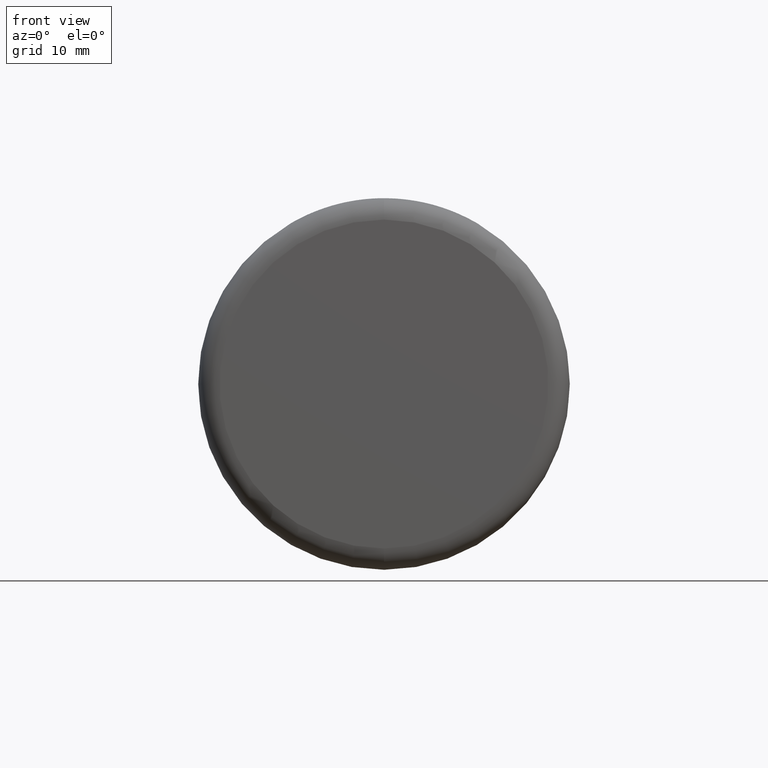
[diagram: clean part render]
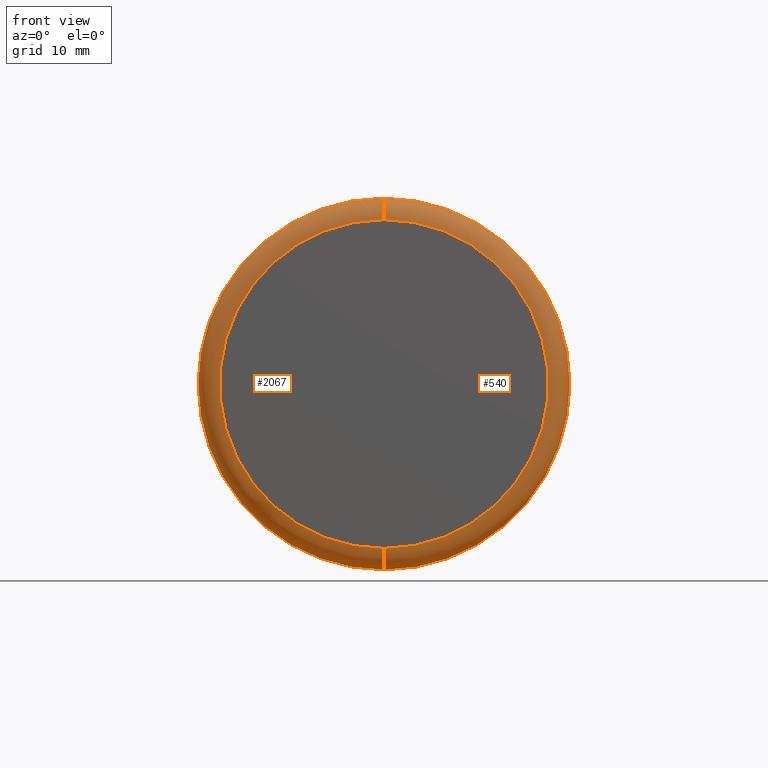
[diagram: same view with one multi-face feature highlighted, each face labeled with its STEP entity id]
A machine part, front view. The highlighted faces form ONE feature: a constant-radius fillet chain: 2 tangent blend faces with common blend radius 2.0736 mm. The faces share edges in the B-rep.
Their STEP definitions:
[1] entity #2067 (Torus):
#288 = CIRCLE ( 'NONE', #893, 15.92640000000000100 ) ;
#315 = VERTEX_POINT ( 'NONE', #457 ) ;
#363 = EDGE_CURVE ( 'NONE', #894, #3220, #3546, .T. ) ;
#457 = CARTESIAN_POINT ( 'NONE',  ( 0.0000000000000000000, 0.0000000000000000000, 15.92640000000000100 ) ) ;
#488 = CARTESIAN_POINT ( 'NONE',  ( 0.0000000000000000000, 2.073600000000001700, 0.0000000000000000000 ) ) ;
#527 = CIRCLE ( 'NONE', #2802, 18.00000000000000000 ) ;
#735 = CARTESIAN_POINT ( 'NONE',  ( 2.204364238465235400E-015, 2.073600000000001700, -18.00000000000000400 ) ) ;
#840 = ORIENTED_EDGE ( 'NONE', *, *, #3097, .T. ) ;
#893 = AXIS2_PLACEMENT_3D ( 'NONE', #4052, #1932, #3820 ) ;
#894 = VERTEX_POINT ( 'NONE', #897 ) ;
#897 = CARTESIAN_POINT ( 'NONE',  ( 2.077392858329638600E-015, 0.0000000000000000000, -15.92640000000000100 ) ) ;
#1544 = EDGE_CURVE ( 'NONE', #3220, #3663, #527, .T. ) ;
#1573 = DIRECTION ( 'NONE',  ( 0.0000000000000000000, 1.000000000000000000, 0.0000000000000000000 ) ) ;
#1694 = FACE_OUTER_BOUND ( 'NONE', #2175, .T. ) ;
#1932 = DIRECTION ( 'NONE',  ( -0.0000000000000000000, -1.000000000000000000, -0.0000000000000000000 ) ) ;
#1950 = DIRECTION ( 'NONE',  ( 0.0000000000000000000, 0.0000000000000000000, 1.000000000000000000 ) ) ;
#2010 = ORIENTED_EDGE ( 'NONE', *, *, #2679, .F. ) ;
#2021 = DIRECTION ( 'NONE',  ( 1.224646799147352700E-016, 0.0000000000000000000, -1.000000000000000000 ) ) ;
#2067 = ADVANCED_FACE ( 'NONE', ( #1694 ), #4378, .T. ) ;
#2087 = AXIS2_PLACEMENT_3D ( 'NONE', #2700, #3509, #2021 ) ;
#2128 = AXIS2_PLACEMENT_3D ( 'NONE', #3710, #2186, #4793 ) ;
#2175 = EDGE_LOOP ( 'NONE', ( #3500, #2010, #840, #2337 ) ) ;
#2186 = DIRECTION ( 'NONE',  ( -1.000000000000000000, 0.0000000000000000000, 0.0000000000000000000 ) ) ;
#2337 = ORIENTED_EDGE ( 'NONE', *, *, #1544, .F. ) ;
#2477 = DIRECTION ( 'NONE',  ( 0.0000000000000000000, 0.0000000000000000000, 1.000000000000000000 ) ) ;
#2679 = EDGE_CURVE ( 'NONE', #315, #894, #288, .T. ) ;
#2700 = CARTESIAN_POINT ( 'NONE',  ( 1.950421478194040600E-015, 2.073600000000001700, -15.92640000000000100 ) ) ;
#2802 = AXIS2_PLACEMENT_3D ( 'NONE', #3183, #3938, #2477 ) ;
#3097 = EDGE_CURVE ( 'NONE', #315, #3663, #4296, .T. ) ;
#3183 = CARTESIAN_POINT ( 'NONE',  ( 0.0000000000000000000, 2.073600000000001700, 0.0000000000000000000 ) ) ;
#3220 = VERTEX_POINT ( 'NONE', #735 ) ;
#3500 = ORIENTED_EDGE ( 'NONE', *, *, #363, .F. ) ;
#3509 = DIRECTION ( 'NONE',  ( 1.000000000000000000, -0.0000000000000000000, 1.224646799147353200E-016 ) ) ;
#3546 = CIRCLE ( 'NONE', #2087, 2.073600000000001700 ) ;
#3663 = VERTEX_POINT ( 'NONE', #3728 ) ;
#3710 = CARTESIAN_POINT ( 'NONE',  ( 0.0000000000000000000, 2.073600000000001700, 15.92640000000000100 ) ) ;
#3728 = CARTESIAN_POINT ( 'NONE',  ( 0.0000000000000000000, 2.073600000000001700, 18.00000000000000400 ) ) ;
#3820 = DIRECTION ( 'NONE',  ( 0.0000000000000000000, 0.0000000000000000000, 1.000000000000000000 ) ) ;
#3938 = DIRECTION ( 'NONE',  ( 0.0000000000000000000, 1.000000000000000000, 0.0000000000000000000 ) ) ;
#4052 = CARTESIAN_POINT ( 'NONE',  ( 0.0000000000000000000, 0.0000000000000000000, 0.0000000000000000000 ) ) ;
#4120 = AXIS2_PLACEMENT_3D ( 'NONE', #488, #1573, #1950 ) ;
#4296 = CIRCLE ( 'NONE', #2128, 2.073600000000001700 ) ;
#4378 = TOROIDAL_SURFACE ( 'NONE', #4120, 15.92640000000000100, 2.073599999999999900 ) ;
#4793 = DIRECTION ( 'NONE',  ( 0.0000000000000000000, 0.0000000000000000000, 1.000000000000000000 ) ) ;
[2] entity #540 (Torus):
#315 = VERTEX_POINT ( 'NONE', #457 ) ;
#363 = EDGE_CURVE ( 'NONE', #894, #3220, #3546, .T. ) ;
#457 = CARTESIAN_POINT ( 'NONE',  ( 0.0000000000000000000, 0.0000000000000000000, 15.92640000000000100 ) ) ;
#463 = AXIS2_PLACEMENT_3D ( 'NONE', #4517, #2289, #2595 ) ;
#481 = ORIENTED_EDGE ( 'NONE', *, *, #3097, .F. ) ;
#500 = DIRECTION ( 'NONE',  ( 0.0000000000000000000, 1.000000000000000000, 0.0000000000000000000 ) ) ;
#507 = EDGE_CURVE ( 'NONE', #3663, #3220, #3479, .T. ) ;
#540 = ADVANCED_FACE ( 'NONE', ( #2488 ), #2549, .T. ) ;
#735 = CARTESIAN_POINT ( 'NONE',  ( 2.204364238465235400E-015, 2.073600000000001700, -18.00000000000000400 ) ) ;
#894 = VERTEX_POINT ( 'NONE', #897 ) ;
#897 = CARTESIAN_POINT ( 'NONE',  ( 2.077392858329638600E-015, 0.0000000000000000000, -15.92640000000000100 ) ) ;
#944 = DIRECTION ( 'NONE',  ( 0.0000000000000000000, 1.000000000000000000, 0.0000000000000000000 ) ) ;
#1291 = CARTESIAN_POINT ( 'NONE',  ( 0.0000000000000000000, 2.073600000000001700, 0.0000000000000000000 ) ) ;
#2021 = DIRECTION ( 'NONE',  ( 1.224646799147352700E-016, 0.0000000000000000000, -1.000000000000000000 ) ) ;
#2087 = AXIS2_PLACEMENT_3D ( 'NONE', #2700, #3509, #2021 ) ;
#2128 = AXIS2_PLACEMENT_3D ( 'NONE', #3710, #2186, #4793 ) ;
#2186 = DIRECTION ( 'NONE',  ( -1.000000000000000000, 0.0000000000000000000, 0.0000000000000000000 ) ) ;
#2287 = EDGE_LOOP ( 'NONE', ( #3223, #3909, #2661, #481 ) ) ;
#2289 = DIRECTION ( 'NONE',  ( -0.0000000000000000000, -1.000000000000000000, -0.0000000000000000000 ) ) ;
#2369 = AXIS2_PLACEMENT_3D ( 'NONE', #1291, #944, #2786 ) ;
#2488 = FACE_OUTER_BOUND ( 'NONE', #2287, .T. ) ;
#2549 = TOROIDAL_SURFACE ( 'NONE', #2369, 15.92640000000000100, 2.073599999999999900 ) ;
#2595 = DIRECTION ( 'NONE',  ( 0.0000000000000000000, 0.0000000000000000000, 1.000000000000000000 ) ) ;
#2661 = ORIENTED_EDGE ( 'NONE', *, *, #507, .F. ) ;
#2700 = CARTESIAN_POINT ( 'NONE',  ( 1.950421478194040600E-015, 2.073600000000001700, -15.92640000000000100 ) ) ;
#2786 = DIRECTION ( 'NONE',  ( 0.0000000000000000000, 0.0000000000000000000, 1.000000000000000000 ) ) ;
#2856 = EDGE_CURVE ( 'NONE', #894, #315, #4480, .T. ) ;
#3097 = EDGE_CURVE ( 'NONE', #315, #3663, #4296, .T. ) ;
#3104 = DIRECTION ( 'NONE',  ( 0.0000000000000000000, 0.0000000000000000000, 1.000000000000000000 ) ) ;
#3167 = AXIS2_PLACEMENT_3D ( 'NONE', #4615, #500, #3104 ) ;
#3220 = VERTEX_POINT ( 'NONE', #735 ) ;
#3223 = ORIENTED_EDGE ( 'NONE', *, *, #2856, .F. ) ;
#3479 = CIRCLE ( 'NONE', #3167, 18.00000000000000000 ) ;
#3509 = DIRECTION ( 'NONE',  ( 1.000000000000000000, -0.0000000000000000000, 1.224646799147353200E-016 ) ) ;
#3546 = CIRCLE ( 'NONE', #2087, 2.073600000000001700 ) ;
#3663 = VERTEX_POINT ( 'NONE', #3728 ) ;
#3710 = CARTESIAN_POINT ( 'NONE',  ( 0.0000000000000000000, 2.073600000000001700, 15.92640000000000100 ) ) ;
#3728 = CARTESIAN_POINT ( 'NONE',  ( 0.0000000000000000000, 2.073600000000001700, 18.00000000000000400 ) ) ;
#3909 = ORIENTED_EDGE ( 'NONE', *, *, #363, .T. ) ;
#4296 = CIRCLE ( 'NONE', #2128, 2.073600000000001700 ) ;
#4480 = CIRCLE ( 'NONE', #463, 15.92640000000000100 ) ;
#4517 = CARTESIAN_POINT ( 'NONE',  ( 0.0000000000000000000, 0.0000000000000000000, 0.0000000000000000000 ) ) ;
#4615 = CARTESIAN_POINT ( 'NONE',  ( 0.0000000000000000000, 2.073600000000001700, 0.0000000000000000000 ) ) ;
#4793 = DIRECTION ( 'NONE',  ( 0.0000000000000000000, 0.0000000000000000000, 1.000000000000000000 ) ) ;